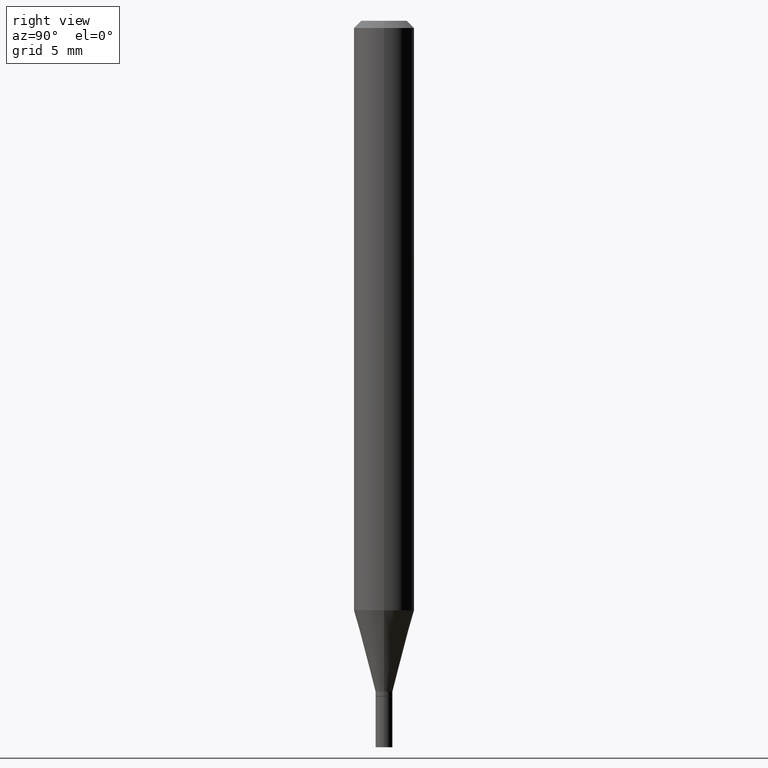
[diagram: clean part render]
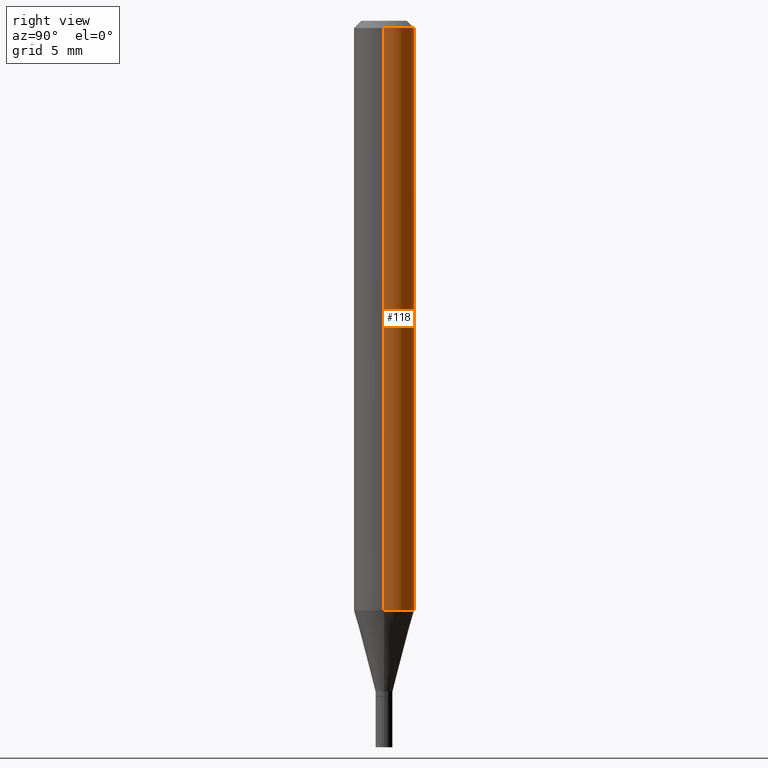
[diagram: same view with one face highlighted and labeled with its STEP entity id]
A machine part, right view. The second image highlights one B-rep face of the part: STEP entity #118.
In plain terms, the highlighted cylindrical surface (edge-blend (fillet) strip) has radius 1.5875 mm, axis along (-0, 0, 1).
Its self-contained STEP definition (entity closure, byte-faithful):
#31 = AXIS2_PLACEMENT_3D ( 'NONE', #456, #276, #279 ) ;
#48 = DIRECTION ( 'NONE',  ( -2.445468806185136597E-29, 3.491481338843145583E-15, 1.000000000000000000 ) ) ;
#69 = EDGE_CURVE ( 'NONE', #382, #181, #189, .T. ) ;
#75 = DIRECTION ( 'NONE',  ( -2.445468806185136877E-29, 3.491481338843145188E-15, 1.000000000000000000 ) ) ;
#83 = CYLINDRICAL_SURFACE ( 'NONE', #251, 0.06250000000000000000 ) ;
#95 = CARTESIAN_POINT ( 'NONE',  ( -0.06250000000000000000, 4.440892098500626162E-16, -3.074334431409316114E-30 ) ) ;
#99 = VECTOR ( 'NONE', #75, 39.37007874015748143 ) ;
#115 = CARTESIAN_POINT ( 'NONE',  ( 0.06250000000000000000, -4.364351673553916694E-16, 3.047610484872459871E-30 ) ) ;
#118 = ADVANCED_FACE ( 'NONE', ( #452 ), #83, .T. ) ;
#148 = EDGE_LOOP ( 'NONE', ( #152, #180, #247, #250 ) ) ;
#152 = ORIENTED_EDGE ( 'NONE', *, *, #261, .T. ) ;
#157 = CARTESIAN_POINT ( 'NONE',  ( 0.000000000000000000, 0.000000000000000000, 0.000000000000000000 ) ) ;
#169 = EDGE_CURVE ( 'NONE', #458, #181, #449, .T. ) ;
#180 = ORIENTED_EDGE ( 'NONE', *, *, #69, .T. ) ;
#181 = VERTEX_POINT ( 'NONE', #210 ) ;
#184 = CARTESIAN_POINT ( 'NONE',  ( -0.06249999999999999306, -3.805245085686840042E-15, -1.217057713659400964 ) ) ;
#189 = LINE ( 'NONE', #95, #284 ) ;
#209 = VERTEX_POINT ( 'NONE', #346 ) ;
#210 = CARTESIAN_POINT ( 'NONE',  ( -0.06250000000000000000, -1.706764047959712450E-15, -0.01499999999999999944 ) ) ;
#243 = AXIS2_PLACEMENT_3D ( 'NONE', #277, #355, #463 ) ;
#247 = ORIENTED_EDGE ( 'NONE', *, *, #169, .F. ) ;
#250 = ORIENTED_EDGE ( 'NONE', *, *, #450, .F. ) ;
#251 = AXIS2_PLACEMENT_3D ( 'NONE', #157, #48, #377 ) ;
#261 = EDGE_CURVE ( 'NONE', #209, #382, #323, .T. ) ;
#276 = DIRECTION ( 'NONE',  ( -2.445468806185136597E-29, 3.491481338843145583E-15, 1.000000000000000000 ) ) ;
#277 = CARTESIAN_POINT ( 'NONE',  ( 3.668203209277705088E-31, -5.237222008264718399E-17, -0.01499999999999999944 ) ) ;
#279 = DIRECTION ( 'NONE',  ( 1.000000000000000000, -6.982962677686270655E-15, 0.000000000000000000 ) ) ;
#284 = VECTOR ( 'NONE', #405, 39.37007874015748143 ) ;
#323 = CIRCLE ( 'NONE', #31, 0.06250000000000000000 ) ;
#346 = CARTESIAN_POINT ( 'NONE',  ( 0.06249999999999999306, -4.685769462892295117E-15, -1.217057713659400964 ) ) ;
#355 = DIRECTION ( 'NONE',  ( -2.445468806185136597E-29, 3.491481338843145583E-15, 1.000000000000000000 ) ) ;
#359 = CARTESIAN_POINT ( 'NONE',  ( 0.06250000000000000000, -4.888073874380388472E-16, -0.01499999999999999944 ) ) ;
#377 = DIRECTION ( 'NONE',  ( 1.000000000000000000, -6.982962677686266711E-15, 4.876176775795935793E-29 ) ) ;
#382 = VERTEX_POINT ( 'NONE', #184 ) ;
#396 = LINE ( 'NONE', #115, #99 ) ;
#405 = DIRECTION ( 'NONE',  ( -2.445468806185136877E-29, 3.491481338843145188E-15, 1.000000000000000000 ) ) ;
#449 = CIRCLE ( 'NONE', #243, 0.06250000000000000000 ) ;
#450 = EDGE_CURVE ( 'NONE', #209, #458, #396, .T. ) ;
#452 = FACE_OUTER_BOUND ( 'NONE', #148, .T. ) ;
#456 = CARTESIAN_POINT ( 'NONE',  ( 2.976276674081067124E-29, -4.249334295536902658E-15, -1.217057713659400964 ) ) ;
#458 = VERTEX_POINT ( 'NONE', #359 ) ;
#463 = DIRECTION ( 'NONE',  ( 1.000000000000000000, -6.982962677686266711E-15, 0.000000000000000000 ) ) ;